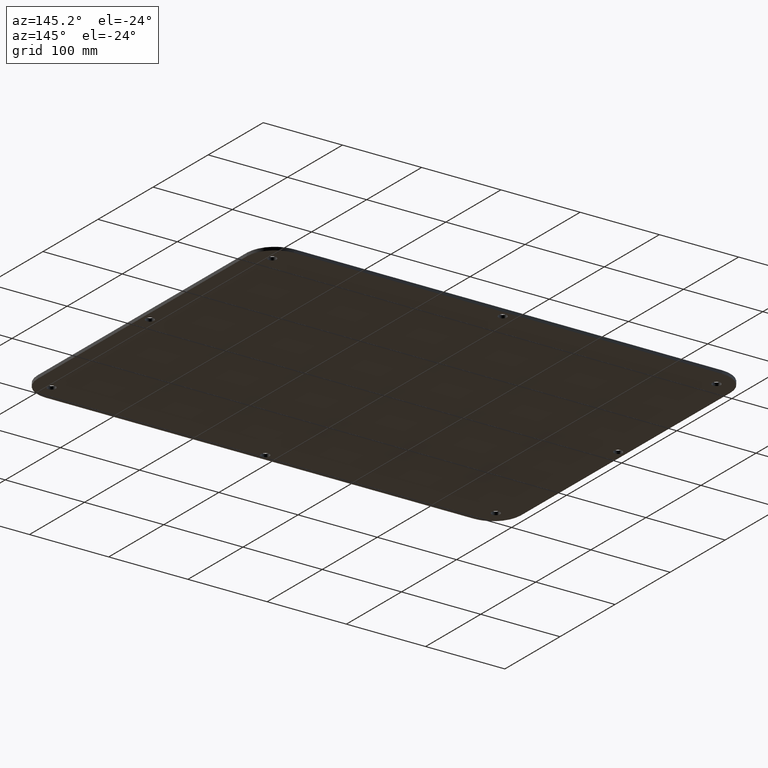
[diagram: clean part render]
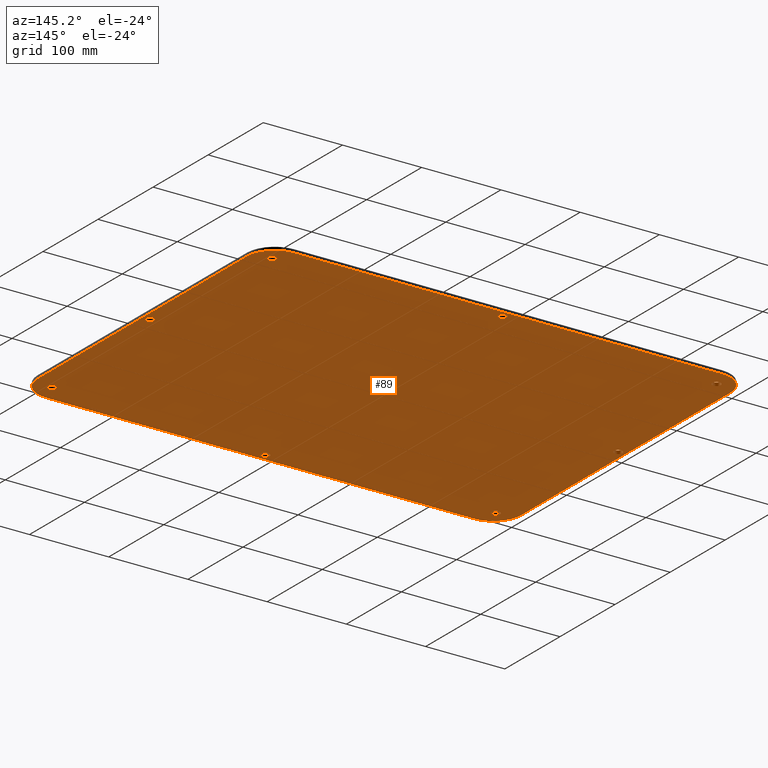
[diagram: same view with one face highlighted and labeled with its STEP entity id]
A machine part, auxiliary view. The second image highlights one B-rep face of the part: STEP entity #89.
In plain terms, the highlighted planar face has unit normal (0, 0, 1).
Its self-contained STEP definition (entity closure, byte-faithful):
#58=FACE_BOUND('',#146,.T.);
#59=FACE_BOUND('',#147,.T.);
#60=FACE_BOUND('',#148,.T.);
#61=FACE_BOUND('',#149,.T.);
#62=FACE_BOUND('',#150,.T.);
#63=FACE_BOUND('',#151,.T.);
#64=FACE_BOUND('',#152,.T.);
#65=FACE_BOUND('',#153,.T.);
#71=PLANE('',#404);
#89=ADVANCED_FACE('',(#111,#58,#59,#60,#61,#62,#63,#64,#65),#71,.F.);
#111=FACE_OUTER_BOUND('',#145,.T.);
#145=EDGE_LOOP('',(#250,#251,#252,#253,#254,#255,#256,#257));
#146=EDGE_LOOP('',(#258));
#147=EDGE_LOOP('',(#259));
#148=EDGE_LOOP('',(#260));
#149=EDGE_LOOP('',(#261));
#150=EDGE_LOOP('',(#262));
#151=EDGE_LOOP('',(#263));
#152=EDGE_LOOP('',(#264));
#153=EDGE_LOOP('',(#265));
#156=LINE('',#517,#172);
#160=LINE('',#529,#176);
#164=LINE('',#541,#180);
#168=LINE('',#588,#184);
#172=VECTOR('',#415,1.);
#176=VECTOR('',#427,1.);
#180=VECTOR('',#439,1.);
#184=VECTOR('',#493,1.);
#250=ORIENTED_EDGE('',*,*,#298,.F.);
#251=ORIENTED_EDGE('',*,*,#334,.F.);
#252=ORIENTED_EDGE('',*,*,#317,.F.);
#253=ORIENTED_EDGE('',*,*,#314,.F.);
#254=ORIENTED_EDGE('',*,*,#311,.F.);
#255=ORIENTED_EDGE('',*,*,#308,.F.);
#256=ORIENTED_EDGE('',*,*,#305,.F.);
#257=ORIENTED_EDGE('',*,*,#302,.F.);
#258=ORIENTED_EDGE('',*,*,#333,.F.);
#259=ORIENTED_EDGE('',*,*,#331,.F.);
#260=ORIENTED_EDGE('',*,*,#329,.T.);
#261=ORIENTED_EDGE('',*,*,#327,.T.);
#262=ORIENTED_EDGE('',*,*,#325,.F.);
#263=ORIENTED_EDGE('',*,*,#323,.F.);
#264=ORIENTED_EDGE('',*,*,#321,.T.);
#265=ORIENTED_EDGE('',*,*,#337,.T.);
#266=VERTEX_POINT('',#509);
#267=VERTEX_POINT('',#510);
#270=VERTEX_POINT('',#518);
#272=VERTEX_POINT('',#524);
#274=VERTEX_POINT('',#530);
#276=VERTEX_POINT('',#536);
#278=VERTEX_POINT('',#542);
#280=VERTEX_POINT('',#548);
#283=VERTEX_POINT('',#556);
#285=VERTEX_POINT('',#561);
#287=VERTEX_POINT('',#566);
#289=VERTEX_POINT('',#571);
#291=VERTEX_POINT('',#576);
#293=VERTEX_POINT('',#581);
#295=VERTEX_POINT('',#586);
#297=VERTEX_POINT('',#594);
#298=EDGE_CURVE('',#266,#267,#338,.T.);
#302=EDGE_CURVE('',#267,#270,#156,.T.);
#305=EDGE_CURVE('',#270,#272,#340,.T.);
#308=EDGE_CURVE('',#272,#274,#160,.T.);
#311=EDGE_CURVE('',#274,#276,#342,.T.);
#314=EDGE_CURVE('',#276,#278,#164,.T.);
#317=EDGE_CURVE('',#278,#280,#344,.T.);
#321=EDGE_CURVE('',#283,#283,#347,.T.);
#323=EDGE_CURVE('',#285,#285,#349,.T.);
#325=EDGE_CURVE('',#287,#287,#351,.T.);
#327=EDGE_CURVE('',#289,#289,#353,.T.);
#329=EDGE_CURVE('',#291,#291,#355,.T.);
#331=EDGE_CURVE('',#293,#293,#357,.T.);
#333=EDGE_CURVE('',#295,#295,#359,.T.);
#334=EDGE_CURVE('',#280,#266,#168,.T.);
#337=EDGE_CURVE('',#297,#297,#361,.T.);
#338=CIRCLE('',#363,35.);
#340=CIRCLE('',#367,35.);
#342=CIRCLE('',#371,35.);
#344=CIRCLE('',#375,35.);
#347=CIRCLE('',#379,5.25);
#349=CIRCLE('',#382,5.25);
#351=CIRCLE('',#385,5.25);
#353=CIRCLE('',#388,5.25);
#355=CIRCLE('',#391,5.25);
#357=CIRCLE('',#394,5.25);
#359=CIRCLE('',#397,5.25);
#361=CIRCLE('',#401,5.25);
#363=AXIS2_PLACEMENT_3D('',#508,#407,#408);
#367=AXIS2_PLACEMENT_3D('',#523,#420,#421);
#371=AXIS2_PLACEMENT_3D('',#535,#432,#433);
#375=AXIS2_PLACEMENT_3D('',#547,#444,#445);
#379=AXIS2_PLACEMENT_3D('',#555,#453,#454);
#382=AXIS2_PLACEMENT_3D('',#560,#459,#460);
#385=AXIS2_PLACEMENT_3D('',#565,#465,#466);
#388=AXIS2_PLACEMENT_3D('',#570,#471,#472);
#391=AXIS2_PLACEMENT_3D('',#575,#477,#478);
#394=AXIS2_PLACEMENT_3D('',#580,#483,#484);
#397=AXIS2_PLACEMENT_3D('',#585,#489,#490);
#401=AXIS2_PLACEMENT_3D('',#593,#499,#500);
#404=AXIS2_PLACEMENT_3D('',#597,#505,#506);
#407=DIRECTION('',(0.,0.,1.));
#408=DIRECTION('',(1.,0.,0.));
#415=DIRECTION('',(1.,0.,0.));
#420=DIRECTION('',(0.,0.,1.));
#421=DIRECTION('',(0.999999999999998,0.,0.));
#427=DIRECTION('',(0.,1.,0.));
#432=DIRECTION('',(0.,0.,1.));
#433=DIRECTION('',(0.999999999999998,0.,0.));
#439=DIRECTION('',(-1.,0.,0.));
#444=DIRECTION('',(0.,0.,1.));
#445=DIRECTION('',(1.,0.,0.));
#453=DIRECTION('',(0.,0.,1.));
#454=DIRECTION('',(-0.999999999999996,0.,0.));
#459=DIRECTION('',(0.,0.,-1.));
#460=DIRECTION('',(0.999999999999996,0.,0.));
#465=DIRECTION('',(0.,0.,-1.));
#466=DIRECTION('',(-0.707106781186541,-0.707106781186541,0.));
#471=DIRECTION('',(0.,0.,1.));
#472=DIRECTION('',(0.999999999999996,0.,0.));
#477=DIRECTION('',(0.,0.,1.));
#478=DIRECTION('',(0.999999999999996,0.,0.));
#483=DIRECTION('',(0.,0.,-1.));
#484=DIRECTION('',(-0.999999999999996,0.,0.));
#489=DIRECTION('',(0.,0.,-1.));
#490=DIRECTION('',(0.999999999999996,0.,0.));
#493=DIRECTION('',(0.,-1.,0.));
#499=DIRECTION('',(0.,0.,1.));
#500=DIRECTION('',(0.999999999999996,0.,0.));
#505=DIRECTION('',(0.,0.,1.));
#506=DIRECTION('',(1.,0.,0.));
#508=CARTESIAN_POINT('',(730.,-2690.,0.));
#509=CARTESIAN_POINT('',(695.,-2690.,0.));
#510=CARTESIAN_POINT('',(730.,-2725.,0.));
#517=CARTESIAN_POINT('',(730.,-2725.,0.));
#518=CARTESIAN_POINT('',(1270.,-2725.,0.));
#523=CARTESIAN_POINT('',(1270.,-2690.,0.));
#524=CARTESIAN_POINT('',(1305.,-2690.,0.));
#529=CARTESIAN_POINT('',(1305.,-2690.,0.));
#530=CARTESIAN_POINT('',(1305.,-2310.,0.));
#535=CARTESIAN_POINT('',(1270.,-2310.,0.));
#536=CARTESIAN_POINT('',(1270.,-2275.,0.));
#541=CARTESIAN_POINT('',(1270.,-2275.,0.));
#542=CARTESIAN_POINT('',(730.,-2275.,0.));
#547=CARTESIAN_POINT('',(730.,-2310.,0.));
#548=CARTESIAN_POINT('',(695.,-2310.,0.));
#555=CARTESIAN_POINT('',(1280.37005768509,-2700.37005768509,0.));
#556=CARTESIAN_POINT('',(1275.12005768509,-2700.37005768509,0.));
#560=CARTESIAN_POINT('',(1000.,-2715.5,0.));
#561=CARTESIAN_POINT('',(1005.25,-2715.5,0.));
#565=CARTESIAN_POINT('',(1280.37005768509,-2299.62994231491,0.));
#566=CARTESIAN_POINT('',(1276.65774708386,-2303.34225291614,0.));
#570=CARTESIAN_POINT('',(704.5,-2500.,0.));
#571=CARTESIAN_POINT('',(709.75,-2500.,0.));
#575=CARTESIAN_POINT('',(719.629942314911,-2299.62994231491,0.));
#576=CARTESIAN_POINT('',(724.879942314911,-2299.62994231491,0.));
#580=CARTESIAN_POINT('',(1295.5,-2500.,0.));
#581=CARTESIAN_POINT('',(1290.25,-2500.,0.));
#585=CARTESIAN_POINT('',(719.629942314911,-2700.37005768509,0.));
#586=CARTESIAN_POINT('',(724.879942314911,-2700.37005768509,0.));
#588=CARTESIAN_POINT('',(695.,-2310.,0.));
#593=CARTESIAN_POINT('',(1000.,-2284.5,0.));
#594=CARTESIAN_POINT('',(1005.25,-2284.5,0.));
#597=CARTESIAN_POINT('',(730.,-2690.,0.));